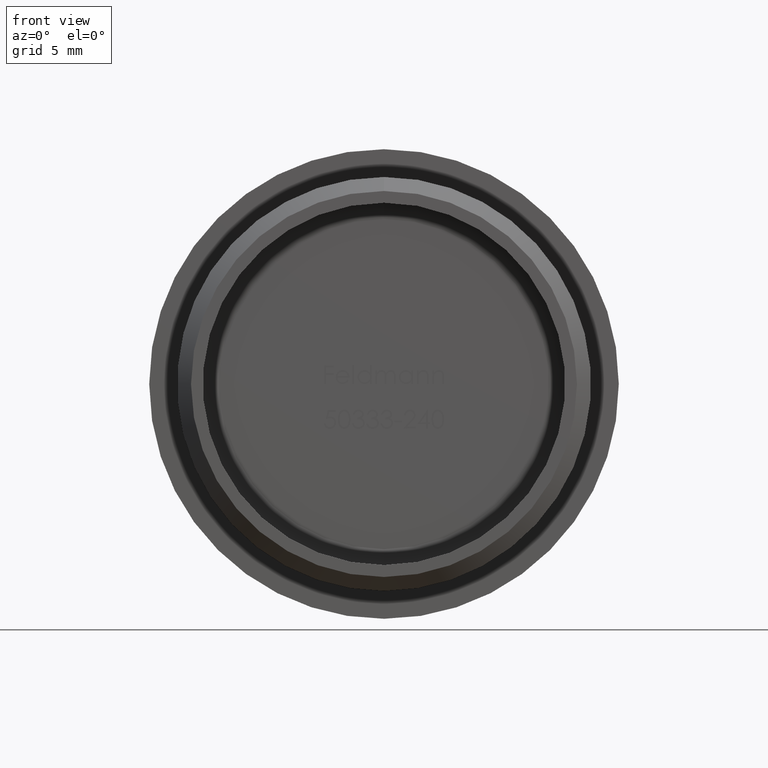
[diagram: clean part render]
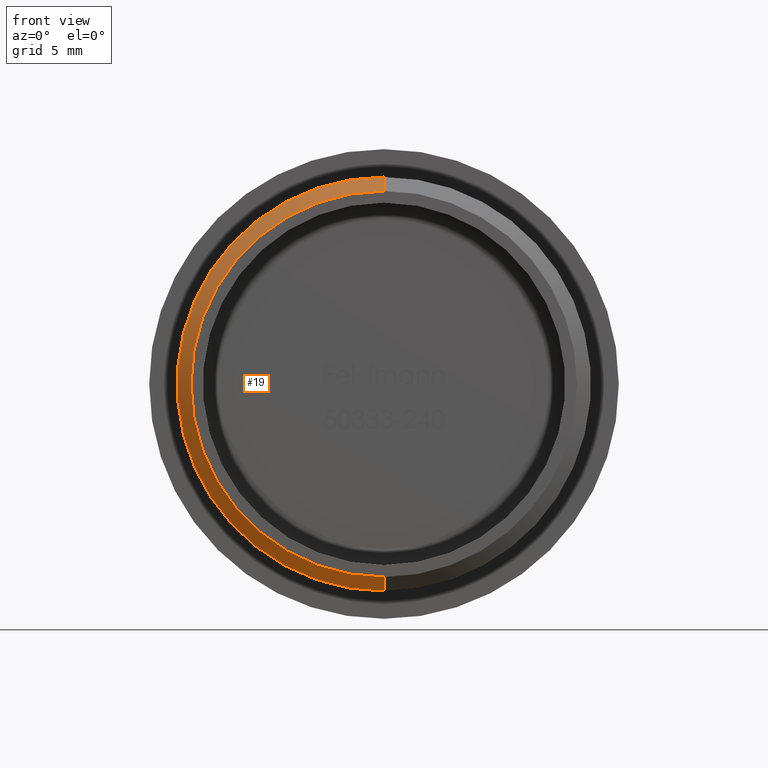
[diagram: same view with one face highlighted and labeled with its STEP entity id]
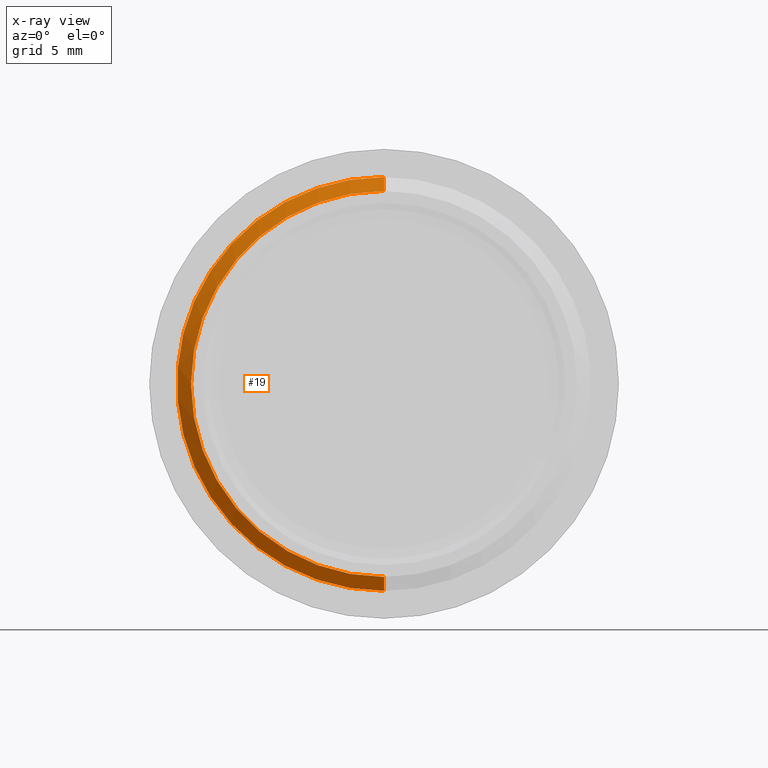
[diagram: x-ray of the same camera — body ghosted, the highlighted face saturated]
A machine part, front view. The second image highlights one B-rep face of the part: STEP entity #19.
The next image is the same camera in x-ray: the body ghosted, the highlighted face saturated — about 0% of this face is hidden behind the body in this view.
In plain terms, the highlighted conical surface has half-angle 45 deg.
Its self-contained STEP definition (entity closure, byte-faithful):
#19 = ADVANCED_FACE ( 'NONE', ( #12486 ), #12835, .T. ) ;
#109 = EDGE_CURVE ( 'NONE', #10773, #4261, #4601, .T. ) ;
#394 = AXIS2_PLACEMENT_3D ( 'NONE', #8955, #12151, #14512 ) ;
#424 = EDGE_CURVE ( 'NONE', #4383, #5021, #9692, .T. ) ;
#481 = DIRECTION ( 'NONE',  ( 0.0000000000000000000, 0.7071067811865474600, 0.7071067811865474600 ) ) ;
#589 = CARTESIAN_POINT ( 'NONE',  ( 0.0000000000000000000, -3.829495281273143500E-016, 0.0000000000000000000 ) ) ;
#1041 = CARTESIAN_POINT ( 'NONE',  ( 1.818600496733819900E-015, 0.9999999999999940000, 14.85000000000000100 ) ) ;
#2066 = EDGE_CURVE ( 'NONE', #10773, #5021, #6298, .T. ) ;
#2112 = CARTESIAN_POINT ( 'NONE',  ( 0.0000000000000000000, 0.0000000000000000000, 0.0000000000000000000 ) ) ;
#2731 = EDGE_LOOP ( 'NONE', ( #8641, #3051, #3188, #12149 ) ) ;
#2988 = DIRECTION ( 'NONE',  ( -0.0000000000000000000, -1.000000000000000000, -0.0000000000000000000 ) ) ;
#3051 = ORIENTED_EDGE ( 'NONE', *, *, #109, .F. ) ;
#3100 = EDGE_CURVE ( 'NONE', #4261, #4383, #4199, .T. ) ;
#3188 = ORIENTED_EDGE ( 'NONE', *, *, #2066, .T. ) ;
#4199 = LINE ( 'NONE', #12557, #5408 ) ;
#4261 = VERTEX_POINT ( 'NONE', #13338 ) ;
#4383 = VERTEX_POINT ( 'NONE', #9006 ) ;
#4601 = CIRCLE ( 'NONE', #12441, 13.85000000000000900 ) ;
#4814 = DIRECTION ( 'NONE',  ( 0.0000000000000000000, 0.0000000000000000000, 1.000000000000000000 ) ) ;
#5021 = VERTEX_POINT ( 'NONE', #1041 ) ;
#5408 = VECTOR ( 'NONE', #8270, 1000.000000000000100 ) ;
#6298 = LINE ( 'NONE', #12866, #12809 ) ;
#7382 = DIRECTION ( 'NONE',  ( 0.0000000000000000000, 0.0000000000000000000, -1.000000000000000000 ) ) ;
#8270 = DIRECTION ( 'NONE',  ( 8.659560562354932900E-017, 0.7071067811865474600, -0.7071067811865474600 ) ) ;
#8641 = ORIENTED_EDGE ( 'NONE', *, *, #3100, .F. ) ;
#8955 = CARTESIAN_POINT ( 'NONE',  ( 0.0000000000000000000, 0.9999999999999940000, 0.0000000000000000000 ) ) ;
#9006 = CARTESIAN_POINT ( 'NONE',  ( 0.0000000000000000000, 0.9999999999999940000, -14.85000000000000100 ) ) ;
#9460 = CARTESIAN_POINT ( 'NONE',  ( 0.0000000000000000000, -3.829495281273143500E-016, 13.85000000000000900 ) ) ;
#9692 = CIRCLE ( 'NONE', #394, 14.85000000000000100 ) ;
#10773 = VERTEX_POINT ( 'NONE', #9460 ) ;
#11516 = DIRECTION ( 'NONE',  ( 0.0000000000000000000, 1.000000000000000000, 0.0000000000000000000 ) ) ;
#11689 = AXIS2_PLACEMENT_3D ( 'NONE', #2112, #11516, #4814 ) ;
#12149 = ORIENTED_EDGE ( 'NONE', *, *, #424, .F. ) ;
#12151 = DIRECTION ( 'NONE',  ( 0.0000000000000000000, 1.000000000000000000, 0.0000000000000000000 ) ) ;
#12441 = AXIS2_PLACEMENT_3D ( 'NONE', #589, #2988, #7382 ) ;
#12486 = FACE_OUTER_BOUND ( 'NONE', #2731, .T. ) ;
#12557 = CARTESIAN_POINT ( 'NONE',  ( 1.696135816819085200E-015, 0.0000000000000000000, -13.85000000000000900 ) ) ;
#12809 = VECTOR ( 'NONE', #481, 1000.000000000000100 ) ;
#12835 = CONICAL_SURFACE ( 'NONE', #11689, 13.85000000000000900, 0.7853981633974482800 ) ;
#12866 = CARTESIAN_POINT ( 'NONE',  ( 0.0000000000000000000, 0.0000000000000000000, 13.85000000000000900 ) ) ;
#13338 = CARTESIAN_POINT ( 'NONE',  ( 1.757368156776452800E-015, -3.829495281273143500E-016, -13.85000000000000900 ) ) ;
#14512 = DIRECTION ( 'NONE',  ( 0.0000000000000000000, 0.0000000000000000000, -1.000000000000000000 ) ) ;